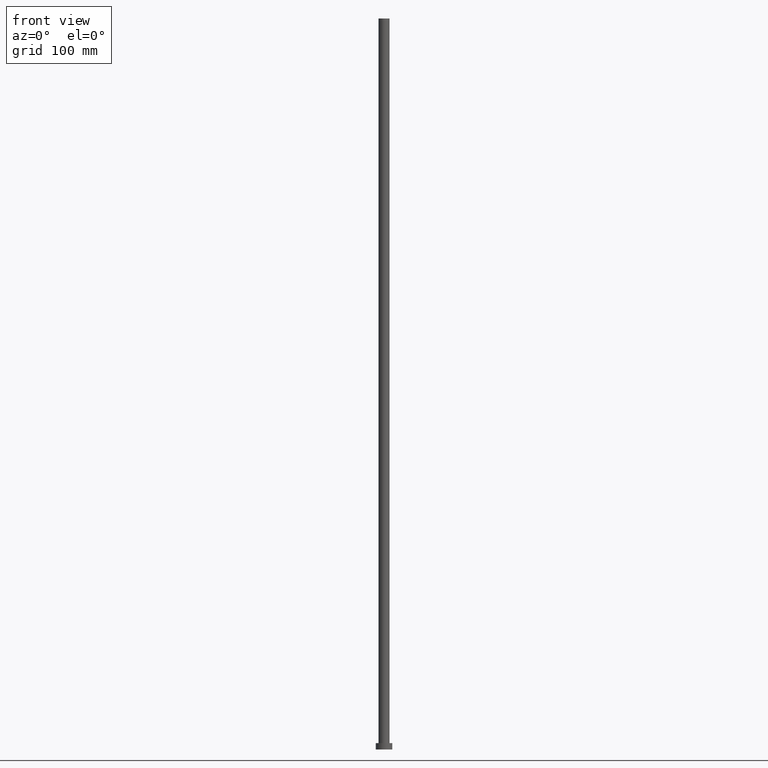
[diagram: clean part render]
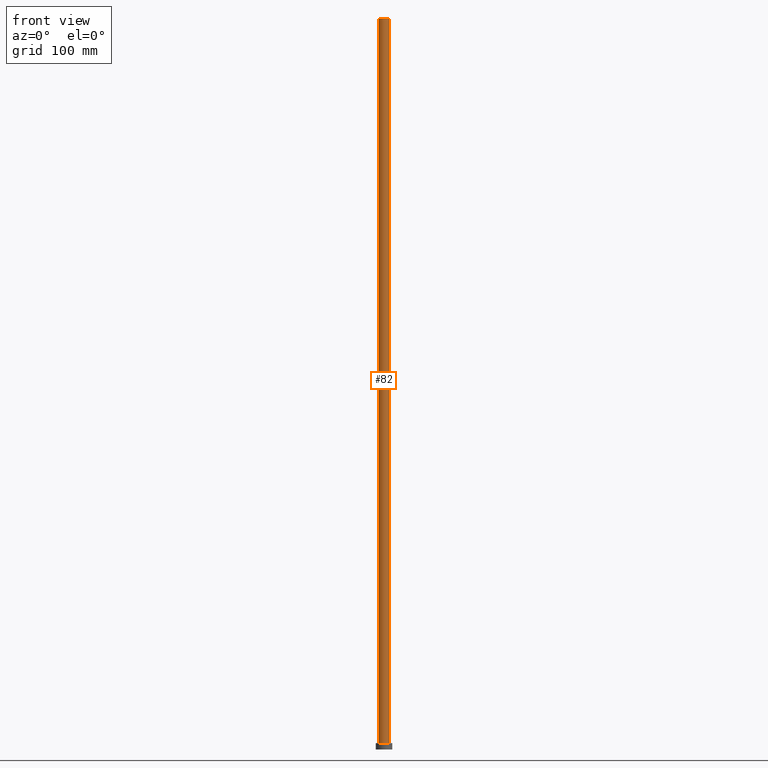
[diagram: same view with one face highlighted and labeled with its STEP entity id]
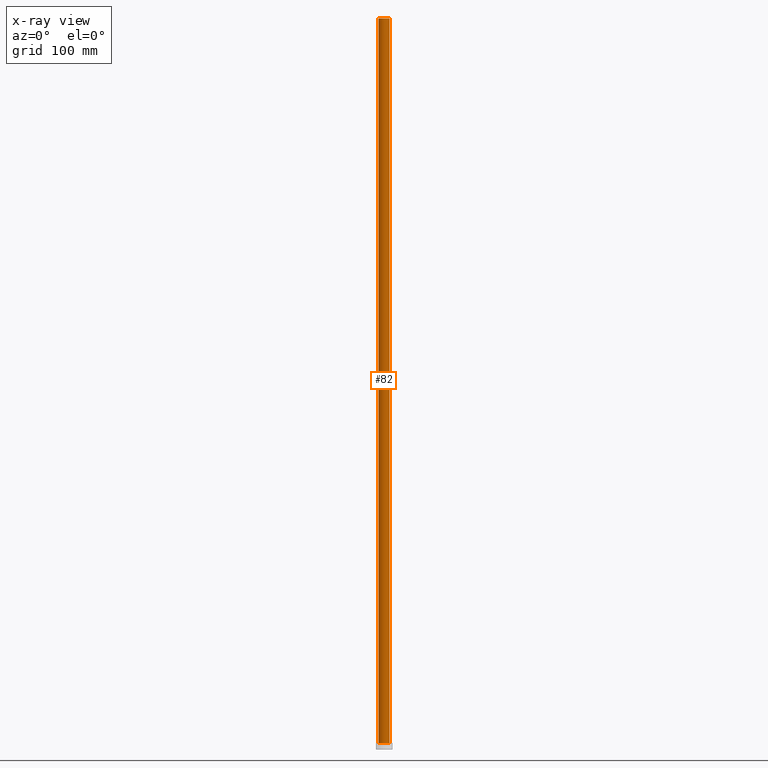
[diagram: x-ray of the same camera — body ghosted, the highlighted face saturated]
A machine part, front view. The second image highlights one B-rep face of the part: STEP entity #82.
The next image is the same camera in x-ray: the body ghosted, the highlighted face saturated — about 0% of this face is hidden behind the body in this view.
In plain terms, the highlighted cylindrical surface (edge-blend (fillet) strip) has radius 6 mm, axis along (-0, -0, -1).
Its self-contained STEP definition (entity closure, byte-faithful):
#1 = EDGE_CURVE ( 'NONE', #83, #47, #236, .T. ) ;
#6 = VECTOR ( 'NONE', #247, 1000.000000000000000 ) ;
#16 = CARTESIAN_POINT ( 'NONE',  ( 0.000000000000000000, 0.000000000000000000, 800.0000000000000000 ) ) ;
#28 = CARTESIAN_POINT ( 'NONE',  ( 0.000000000000000000, 0.000000000000000000, 7.000000000000000000 ) ) ;
#33 = CARTESIAN_POINT ( 'NONE',  ( 6.000000000000000888, 7.347880794884120722E-16, 7.000000000000000000 ) ) ;
#35 = CARTESIAN_POINT ( 'NONE',  ( -6.000000000000000888, 0.000000000000000000, 800.0000000000000000 ) ) ;
#39 = DIRECTION ( 'NONE',  ( -0.000000000000000000, -0.000000000000000000, -1.000000000000000000 ) ) ;
#47 = VERTEX_POINT ( 'NONE', #33 ) ;
#55 = DIRECTION ( 'NONE',  ( 1.000000000000000000, 0.000000000000000000, 0.000000000000000000 ) ) ;
#57 = CARTESIAN_POINT ( 'NONE',  ( 6.000000000000000888, 7.347880794884120722E-16, 800.0000000000000000 ) ) ;
#60 = CIRCLE ( 'NONE', #192, 6.000000000000000888 ) ;
#67 = VERTEX_POINT ( 'NONE', #165 ) ;
#68 = ORIENTED_EDGE ( 'NONE', *, *, #77, .F. ) ;
#70 = EDGE_LOOP ( 'NONE', ( #239, #68, #219, #160 ) ) ;
#77 = EDGE_CURVE ( 'NONE', #203, #67, #60, .T. ) ;
#82 = ADVANCED_FACE ( 'NONE', ( #111 ), #226, .T. ) ;
#83 = VERTEX_POINT ( 'NONE', #127 ) ;
#90 = DIRECTION ( 'NONE',  ( 0.000000000000000000, 0.000000000000000000, 1.000000000000000000 ) ) ;
#91 = CARTESIAN_POINT ( 'NONE',  ( -6.000000000000000888, 0.000000000000000000, 800.0000000000000000 ) ) ;
#100 = VECTOR ( 'NONE', #39, 1000.000000000000000 ) ;
#111 = FACE_OUTER_BOUND ( 'NONE', #70, .T. ) ;
#114 = AXIS2_PLACEMENT_3D ( 'NONE', #16, #212, #168 ) ;
#122 = DIRECTION ( 'NONE',  ( 0.000000000000000000, 0.000000000000000000, 1.000000000000000000 ) ) ;
#126 = LINE ( 'NONE', #35, #6 ) ;
#127 = CARTESIAN_POINT ( 'NONE',  ( -6.000000000000000888, 0.000000000000000000, 7.000000000000000000 ) ) ;
#130 = EDGE_CURVE ( 'NONE', #203, #83, #126, .T. ) ;
#160 = ORIENTED_EDGE ( 'NONE', *, *, #1, .T. ) ;
#165 = CARTESIAN_POINT ( 'NONE',  ( 6.000000000000000888, 7.347880794884120722E-16, 800.0000000000000000 ) ) ;
#168 = DIRECTION ( 'NONE',  ( -1.000000000000000000, 0.000000000000000000, 0.000000000000000000 ) ) ;
#180 = DIRECTION ( 'NONE',  ( 1.000000000000000000, 0.000000000000000000, 0.000000000000000000 ) ) ;
#192 = AXIS2_PLACEMENT_3D ( 'NONE', #244, #90, #55 ) ;
#201 = EDGE_CURVE ( 'NONE', #67, #47, #210, .T. ) ;
#203 = VERTEX_POINT ( 'NONE', #91 ) ;
#210 = LINE ( 'NONE', #57, #100 ) ;
#212 = DIRECTION ( 'NONE',  ( -0.000000000000000000, -0.000000000000000000, -1.000000000000000000 ) ) ;
#217 = AXIS2_PLACEMENT_3D ( 'NONE', #28, #122, #180 ) ;
#219 = ORIENTED_EDGE ( 'NONE', *, *, #130, .T. ) ;
#226 = CYLINDRICAL_SURFACE ( 'NONE', #114, 6.000000000000000888 ) ;
#236 = CIRCLE ( 'NONE', #217, 6.000000000000000888 ) ;
#239 = ORIENTED_EDGE ( 'NONE', *, *, #201, .F. ) ;
#244 = CARTESIAN_POINT ( 'NONE',  ( 0.000000000000000000, 0.000000000000000000, 800.0000000000000000 ) ) ;
#247 = DIRECTION ( 'NONE',  ( -0.000000000000000000, -0.000000000000000000, -1.000000000000000000 ) ) ;